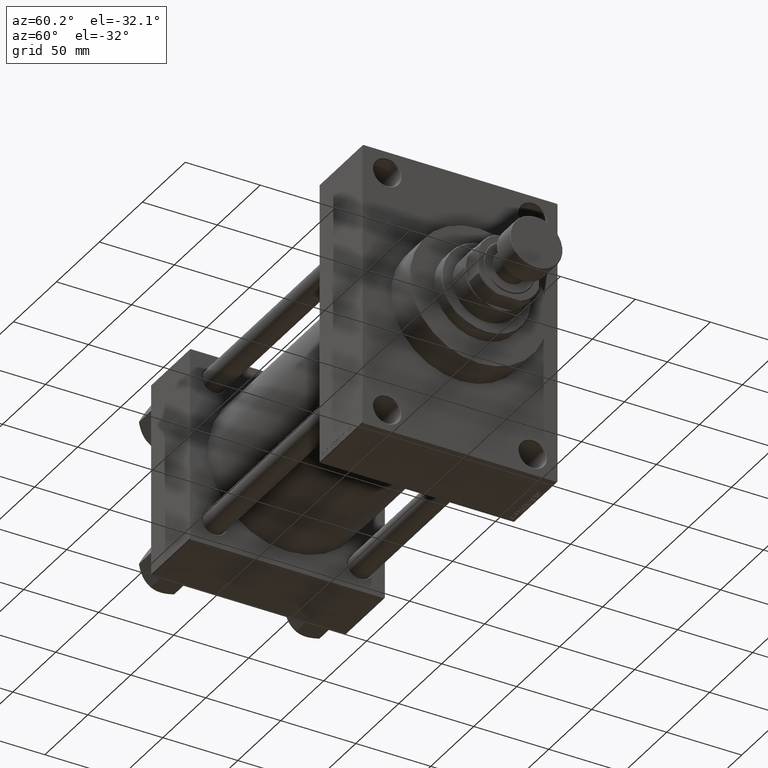
[diagram: clean part render]
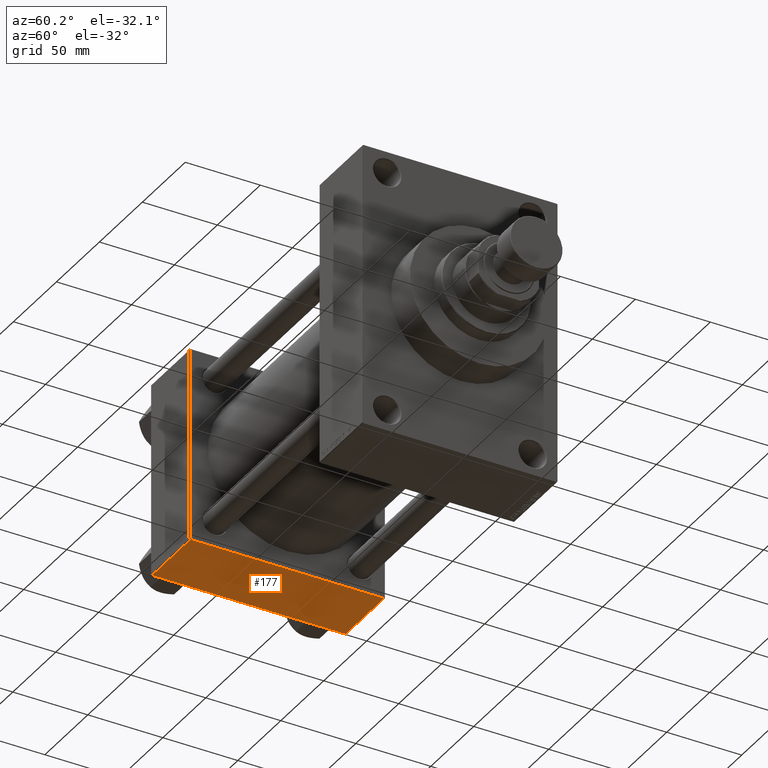
[diagram: same view with one face highlighted and labeled with its STEP entity id]
A machine part, auxiliary view. The second image highlights one B-rep face of the part: STEP entity #177.
In plain terms, the highlighted planar face has unit normal (0, 0, -1).
Its self-contained STEP definition (entity closure, byte-faithful):
#177 = ADVANCED_FACE ( 'NONE', ( #17982 ), #14573, .T. ) ;
#197 = CARTESIAN_POINT ( 'NONE',  ( 45.00000000000000000, 64.49999999999997158, -64.99999999999998579 ) ) ;
#1092 = DIRECTION ( 'NONE',  ( 0.000000000000000000, -1.000000000000000000, -1.067522139062650425E-16 ) ) ;
#1811 = CARTESIAN_POINT ( 'NONE',  ( 45.00000000000000000, 65.00000000000000000, -64.99999999999998579 ) ) ;
#3293 = LINE ( 'NONE', #40262, #6403 ) ;
#4550 = CARTESIAN_POINT ( 'NONE',  ( 0.000000000000000000, 64.49999999999997158, -64.99999999999998579 ) ) ;
#5096 = CARTESIAN_POINT ( 'NONE',  ( 45.00000000000000000, -64.49999999999994316, -65.00000000000000000 ) ) ;
#6403 = VECTOR ( 'NONE', #22501, 1000.000000000000000 ) ;
#6927 = VERTEX_POINT ( 'NONE', #34617 ) ;
#7524 = LINE ( 'NONE', #37216, #36756 ) ;
#8241 = DIRECTION ( 'NONE',  ( -1.000000000000000000, 0.000000000000000000, 0.000000000000000000 ) ) ;
#10184 = DIRECTION ( 'NONE',  ( 0.000000000000000000, 1.000000000000000000, 1.067522139062650548E-16 ) ) ;
#14573 = PLANE ( 'NONE',  #26217 ) ;
#14759 = ORIENTED_EDGE ( 'NONE', *, *, #39950, .F. ) ;
#17741 = CARTESIAN_POINT ( 'NONE',  ( 45.00000000000000000, 65.00000000000000000, -64.99999999999998579 ) ) ;
#17932 = VERTEX_POINT ( 'NONE', #4550 ) ;
#17982 = FACE_OUTER_BOUND ( 'NONE', #29716, .T. ) ;
#19864 = VECTOR ( 'NONE', #35688, 1000.000000000000000 ) ;
#21593 = LINE ( 'NONE', #43972, #19864 ) ;
#22501 = DIRECTION ( 'NONE',  ( 0.000000000000000000, -1.000000000000000000, -1.067522139062650425E-16 ) ) ;
#26217 = AXIS2_PLACEMENT_3D ( 'NONE', #17741, #43521, #10184 ) ;
#28122 = ORIENTED_EDGE ( 'NONE', *, *, #36049, .T. ) ;
#29716 = EDGE_LOOP ( 'NONE', ( #14759, #32659, #28122, #46675 ) ) ;
#31266 = LINE ( 'NONE', #1811, #32291 ) ;
#32291 = VECTOR ( 'NONE', #1092, 1000.000000000000000 ) ;
#32532 = VERTEX_POINT ( 'NONE', #197 ) ;
#32659 = ORIENTED_EDGE ( 'NONE', *, *, #32744, .T. ) ;
#32744 = EDGE_CURVE ( 'NONE', #17932, #32532, #21593, .T. ) ;
#34617 = CARTESIAN_POINT ( 'NONE',  ( 0.000000000000000000, -64.49999999999994316, -65.00000000000000000 ) ) ;
#35688 = DIRECTION ( 'NONE',  ( 1.000000000000000000, 0.000000000000000000, 0.000000000000000000 ) ) ;
#36049 = EDGE_CURVE ( 'NONE', #32532, #45805, #31266, .T. ) ;
#36756 = VECTOR ( 'NONE', #8241, 1000.000000000000000 ) ;
#37216 = CARTESIAN_POINT ( 'NONE',  ( 0.000000000000000000, -64.49999999999994316, -65.00000000000000000 ) ) ;
#39950 = EDGE_CURVE ( 'NONE', #17932, #6927, #3293, .T. ) ;
#40262 = CARTESIAN_POINT ( 'NONE',  ( 0.000000000000000000, 65.00000000000000000, -64.99999999999998579 ) ) ;
#40680 = EDGE_CURVE ( 'NONE', #45805, #6927, #7524, .T. ) ;
#43521 = DIRECTION ( 'NONE',  ( 0.000000000000000000, 1.067522139062650548E-16, -1.000000000000000000 ) ) ;
#43972 = CARTESIAN_POINT ( 'NONE',  ( 45.00000000000000000, 64.49999999999997158, -64.99999999999998579 ) ) ;
#45805 = VERTEX_POINT ( 'NONE', #5096 ) ;
#46675 = ORIENTED_EDGE ( 'NONE', *, *, #40680, .T. ) ;